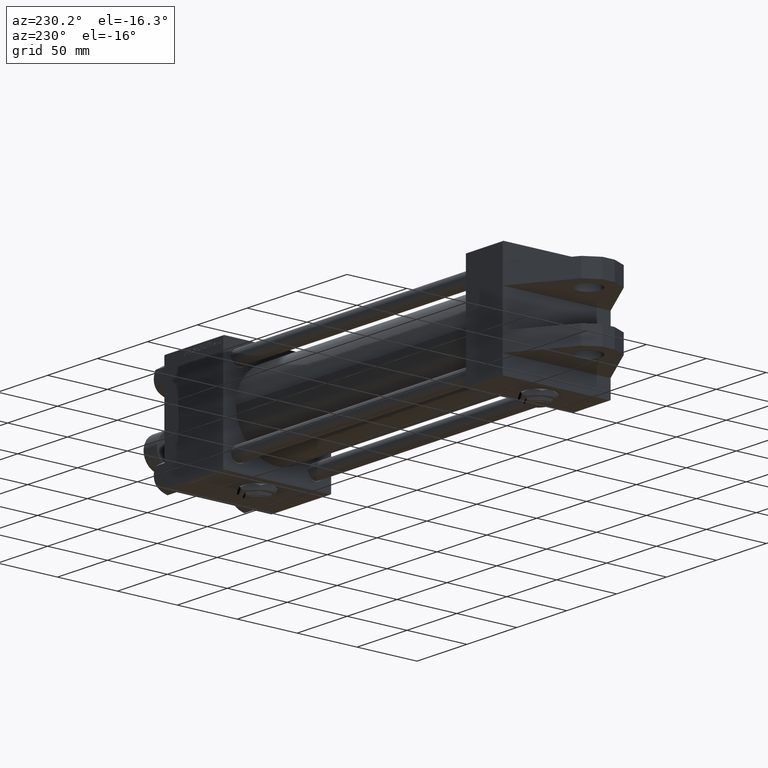
[diagram: clean part render]
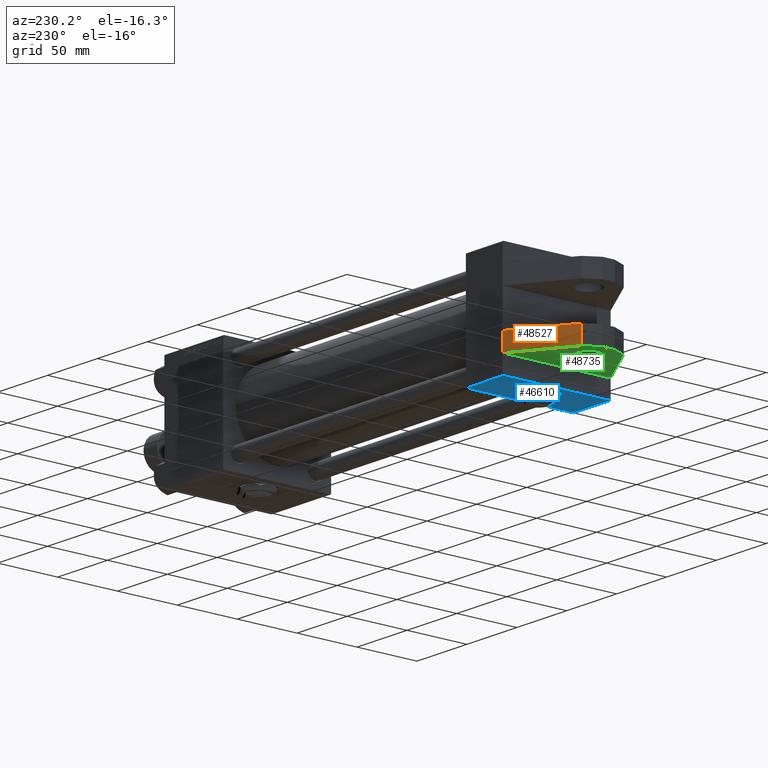
[diagram: same view with three faces highlighted in distinct colors, each labeled with its STEP entity id]
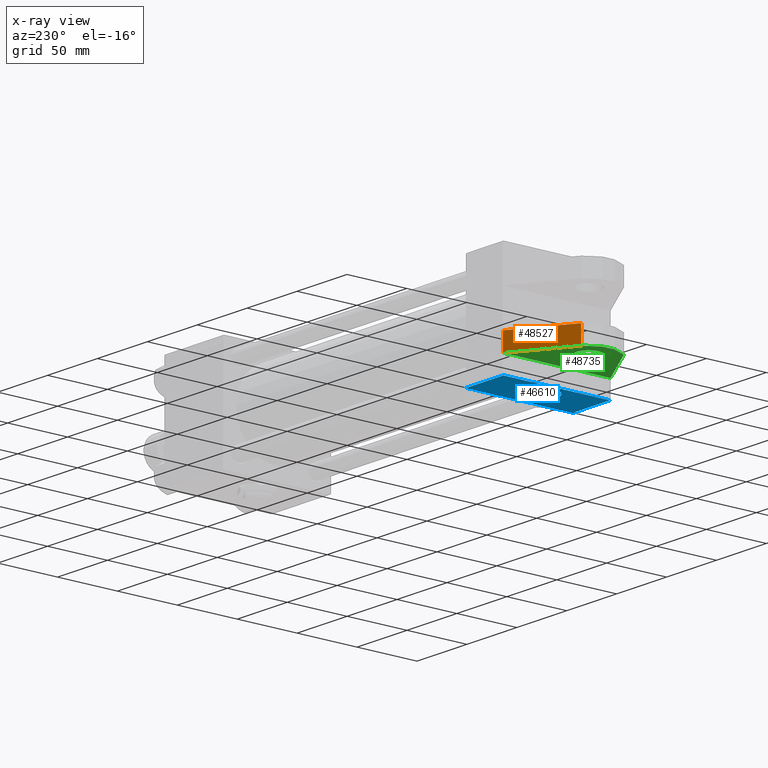
[diagram: x-ray of the same camera — body ghosted, the three highlighted faces saturated]
A machine part, auxiliary view with three faces highlighted in distinct colors.
The next image is the same camera in x-ray (body ghosted, the three faces saturated) — at least one of them is partly hidden behind the body in this view.
Their STEP definitions:

[orange] entity #48527 — the highlighted planar face has unit normal (0.5302, -0.8479, 0).
#273 = FACE_OUTER_BOUND ( 'NONE', #5173, .T. ) ;
#784 = EDGE_CURVE ( 'NONE', #35265, #30589, #49190, .T. ) ;
#1692 = EDGE_CURVE ( 'NONE', #17028, #30589, #33648, .T. ) ;
#2057 = DIRECTION ( 'NONE',  ( -0.000000000000000000, -1.000000000000000000, -0.000000000000000000 ) ) ;
#2579 = LINE ( 'NONE', #42262, #51378 ) ;
#5173 = EDGE_LOOP ( 'NONE', ( #15422, #50643, #42149, #13119 ) ) ;
#11262 = VECTOR ( 'NONE', #29154, 1000.000000000000114 ) ;
#12976 = PLANE ( 'NONE',  #47771 ) ;
#13119 = ORIENTED_EDGE ( 'NONE', *, *, #36225, .T. ) ;
#15422 = ORIENTED_EDGE ( 'NONE', *, *, #1692, .T. ) ;
#17028 = VERTEX_POINT ( 'NONE', #20891 ) ;
#17154 = LINE ( 'NONE', #33284, #21150 ) ;
#20891 = CARTESIAN_POINT ( 'NONE',  ( -44.91602078046192048, 15.00000000000000000, 16.91288539427591431 ) ) ;
#21150 = VECTOR ( 'NONE', #32765, 1000.000000000000114 ) ;
#29154 = DIRECTION ( 'NONE',  ( 0.8478744008358545248, 0.000000000000000000, 0.5301971335335947666 ) ) ;
#29821 = CARTESIAN_POINT ( 'NONE',  ( 0.000000000000000000, 15.00000000000000711, 45.00000000000000711 ) ) ;
#30589 = VERTEX_POINT ( 'NONE', #29821 ) ;
#30696 = VECTOR ( 'NONE', #37078, 1000.000000000000000 ) ;
#32765 = DIRECTION ( 'NONE',  ( 0.8478744008358545248, 0.000000000000000000, 0.5301971335335947666 ) ) ;
#33284 = CARTESIAN_POINT ( 'NONE',  ( -44.91602078046192048, 30.00000000000000000, 16.91288539427591431 ) ) ;
#33648 = LINE ( 'NONE', #45247, #11262 ) ;
#35265 = VERTEX_POINT ( 'NONE', #47805 ) ;
#35894 = VERTEX_POINT ( 'NONE', #41796 ) ;
#36225 = EDGE_CURVE ( 'NONE', #35894, #17028, #2579, .T. ) ;
#37078 = DIRECTION ( 'NONE',  ( -0.000000000000000000, -1.000000000000000000, -0.000000000000000000 ) ) ;
#37591 = CARTESIAN_POINT ( 'NONE',  ( 0.000000000000000000, 30.00000000000000000, 45.00000000000000000 ) ) ;
#39861 = EDGE_CURVE ( 'NONE', #35894, #35265, #17154, .T. ) ;
#40742 = DIRECTION ( 'NONE',  ( -0.8478744008358545248, 0.000000000000000000, -0.5301971335335948776 ) ) ;
#41796 = CARTESIAN_POINT ( 'NONE',  ( -44.91602078046192048, 30.00000000000000000, 16.91288539427591431 ) ) ;
#42149 = ORIENTED_EDGE ( 'NONE', *, *, #39861, .F. ) ;
#42262 = CARTESIAN_POINT ( 'NONE',  ( -44.91602078046192048, 30.00000000000000000, 16.91288539427591431 ) ) ;
#44176 = DIRECTION ( 'NONE',  ( 0.5301971335335949886, 0.000000000000000000, -0.8478744008358546358 ) ) ;
#45213 = CARTESIAN_POINT ( 'NONE',  ( -44.91602078046192048, 30.00000000000000000, 16.91288539427591431 ) ) ;
#45247 = CARTESIAN_POINT ( 'NONE',  ( -44.91602078046192048, 15.00000000000000000, 16.91288539427591431 ) ) ;
#47771 = AXIS2_PLACEMENT_3D ( 'NONE', #45213, #44176, #40742 ) ;
#47805 = CARTESIAN_POINT ( 'NONE',  ( 0.000000000000000000, 30.00000000000000355, 45.00000000000001421 ) ) ;
#48527 = ADVANCED_FACE ( 'NONE', ( #273 ), #12976, .F. ) ;
#49190 = LINE ( 'NONE', #37591, #30696 ) ;
#50643 = ORIENTED_EDGE ( 'NONE', *, *, #784, .F. ) ;
#51378 = VECTOR ( 'NONE', #2057, 1000.000000000000000 ) ;

[blue] entity #46610 — the highlighted planar face has unit normal (0, 0, -1).
#688 = EDGE_CURVE ( 'NONE', #52302, #42463, #4535, .T. ) ;
#1186 = LINE ( 'NONE', #33218, #2992 ) ;
#2665 = ORIENTED_EDGE ( 'NONE', *, *, #31198, .F. ) ;
#2992 = VECTOR ( 'NONE', #49297, 1000.000000000000000 ) ;
#3207 = CIRCLE ( 'NONE', #44614, 15.00000000000000178 ) ;
#4104 = DIRECTION ( 'NONE',  ( 0.000000000000000000, 0.000000000000000000, 1.000000000000000000 ) ) ;
#4355 = CARTESIAN_POINT ( 'NONE',  ( 18.50000000000000000, 44.99999999999998579, 0.000000000000000000 ) ) ;
#4535 = LINE ( 'NONE', #12743, #21394 ) ;
#4544 = ORIENTED_EDGE ( 'NONE', *, *, #27800, .F. ) ;
#5676 = PLANE ( 'NONE',  #13120 ) ;
#6478 = EDGE_CURVE ( 'NONE', #52302, #27157, #50247, .T. ) ;
#7332 = CARTESIAN_POINT ( 'NONE',  ( 18.50000000000000355, 44.99999999999998579, -15.00000000000000178 ) ) ;
#11962 = EDGE_LOOP ( 'NONE', ( #2665, #4544 ) ) ;
#12186 = DIRECTION ( 'NONE',  ( 0.000000000000000000, 1.000000000000000000, 0.000000000000000000 ) ) ;
#12743 = CARTESIAN_POINT ( 'NONE',  ( 0.000000000000000000, 44.99999999999998579, 45.00000000000001421 ) ) ;
#13120 = AXIS2_PLACEMENT_3D ( 'NONE', #34520, #30550, #25542 ) ;
#13780 = CARTESIAN_POINT ( 'NONE',  ( 0.000000000000000000, 44.99999999999998579, 44.50000000000001421 ) ) ;
#19544 = EDGE_CURVE ( 'NONE', #22732, #42463, #50371, .T. ) ;
#19909 = DIRECTION ( 'NONE',  ( 0.000000000000000000, 0.000000000000000000, -1.000000000000000000 ) ) ;
#21300 = CARTESIAN_POINT ( 'NONE',  ( 37.00000000000000000, 44.99999999999998579, -44.49999999999995737 ) ) ;
#21394 = VECTOR ( 'NONE', #19909, 1000.000000000000000 ) ;
#22056 = CARTESIAN_POINT ( 'NONE',  ( 37.00000000000000000, 44.99999999999998579, 44.50000000000001421 ) ) ;
#22732 = VERTEX_POINT ( 'NONE', #21300 ) ;
#22989 = DIRECTION ( 'NONE',  ( 0.000000000000000000, 1.000000000000000000, 0.000000000000000000 ) ) ;
#24939 = VERTEX_POINT ( 'NONE', #49412 ) ;
#25542 = DIRECTION ( 'NONE',  ( 0.000000000000000000, -0.000000000000000000, 1.000000000000000000 ) ) ;
#26329 = FACE_BOUND ( 'NONE', #11962, .T. ) ;
#27157 = VERTEX_POINT ( 'NONE', #22056 ) ;
#27649 = AXIS2_PLACEMENT_3D ( 'NONE', #4355, #22989, #4104 ) ;
#27800 = EDGE_CURVE ( 'NONE', #33577, #24939, #36929, .T. ) ;
#27839 = ORIENTED_EDGE ( 'NONE', *, *, #19544, .T. ) ;
#28321 = DIRECTION ( 'NONE',  ( 0.000000000000000000, 0.000000000000000000, 1.000000000000000000 ) ) ;
#29019 = VECTOR ( 'NONE', #46420, 1000.000000000000000 ) ;
#30550 = DIRECTION ( 'NONE',  ( -0.000000000000000000, 1.000000000000000000, 0.000000000000000000 ) ) ;
#31198 = EDGE_CURVE ( 'NONE', #24939, #33577, #3207, .T. ) ;
#33218 = CARTESIAN_POINT ( 'NONE',  ( 37.00000000000000000, 44.99999999999998579, 45.00000000000001421 ) ) ;
#33435 = EDGE_LOOP ( 'NONE', ( #41379, #27839, #38841, #52108 ) ) ;
#33577 = VERTEX_POINT ( 'NONE', #7332 ) ;
#34520 = CARTESIAN_POINT ( 'NONE',  ( 37.00000000000000000, 44.99999999999998579, 45.00000000000001421 ) ) ;
#34944 = CARTESIAN_POINT ( 'NONE',  ( 0.000000000000000000, 44.99999999999998579, -44.49999999999995737 ) ) ;
#36929 = CIRCLE ( 'NONE', #27649, 15.00000000000000178 ) ;
#38133 = DIRECTION ( 'NONE',  ( 1.000000000000000000, 0.000000000000000000, 0.000000000000000000 ) ) ;
#38841 = ORIENTED_EDGE ( 'NONE', *, *, #688, .F. ) ;
#41379 = ORIENTED_EDGE ( 'NONE', *, *, #47307, .T. ) ;
#41906 = FACE_OUTER_BOUND ( 'NONE', #33435, .T. ) ;
#42463 = VERTEX_POINT ( 'NONE', #34944 ) ;
#44356 = VECTOR ( 'NONE', #38133, 1000.000000000000000 ) ;
#44614 = AXIS2_PLACEMENT_3D ( 'NONE', #51560, #12186, #28321 ) ;
#46420 = DIRECTION ( 'NONE',  ( -1.000000000000000000, 0.000000000000000000, 0.000000000000000000 ) ) ;
#46610 = ADVANCED_FACE ( 'NONE', ( #26329, #41906 ), #5676, .T. ) ;
#47307 = EDGE_CURVE ( 'NONE', #27157, #22732, #1186, .T. ) ;
#49297 = DIRECTION ( 'NONE',  ( 0.000000000000000000, 0.000000000000000000, -1.000000000000000000 ) ) ;
#49412 = CARTESIAN_POINT ( 'NONE',  ( 18.50000000000000000, 44.99999999999998579, 15.00000000000000178 ) ) ;
#49727 = CARTESIAN_POINT ( 'NONE',  ( 37.00000000000000000, 44.99999999999998579, 44.50000000000001421 ) ) ;
#49846 = CARTESIAN_POINT ( 'NONE',  ( 37.00000000000000000, 44.99999999999998579, -44.49999999999998579 ) ) ;
#50247 = LINE ( 'NONE', #49727, #44356 ) ;
#50371 = LINE ( 'NONE', #49846, #29019 ) ;
#51560 = CARTESIAN_POINT ( 'NONE',  ( 18.50000000000000000, 44.99999999999998579, 0.000000000000000000 ) ) ;
#52108 = ORIENTED_EDGE ( 'NONE', *, *, #6478, .T. ) ;
#52302 = VERTEX_POINT ( 'NONE', #13780 ) ;

[green] entity #48735 — the highlighted planar face has unit normal (0, 0, -1).
#5094 = CARTESIAN_POINT ( 'NONE',  ( -32.00000000000000000, 30.00000000000000000, -10.00000000000000000 ) ) ;
#5608 = DIRECTION ( 'NONE',  ( 0.000000000000000000, 0.000000000000000000, -1.000000000000000000 ) ) ;
#8028 = CIRCLE ( 'NONE', #38476, 10.00000000000000000 ) ;
#8271 = CARTESIAN_POINT ( 'NONE',  ( -46.14251089227400371, 30.00000000000000000, -17.56142592832800631 ) ) ;
#8746 = EDGE_LOOP ( 'NONE', ( #29286, #26352, #43060, #16869, #19780, #50095 ) ) ;
#9698 = EDGE_CURVE ( 'NONE', #48168, #36367, #43650, .T. ) ;
#11369 = VECTOR ( 'NONE', #25826, 999.9999999999998863 ) ;
#11905 = CARTESIAN_POINT ( 'NONE',  ( -52.00000000000000711, 30.00000000000000000, 5.000000000000000000 ) ) ;
#11913 = CARTESIAN_POINT ( 'NONE',  ( -52.00000000000000711, 30.00000000000000000, -5.000000000000000000 ) ) ;
#13643 = EDGE_CURVE ( 'NONE', #35265, #37915, #26262, .T. ) ;
#15077 = CARTESIAN_POINT ( 'NONE',  ( 0.000000000000000000, 30.00000000000000000, 0.000000000000000000 ) ) ;
#15600 = ORIENTED_EDGE ( 'NONE', *, *, #9698, .F. ) ;
#16121 = EDGE_CURVE ( 'NONE', #28159, #29395, #40701, .T. ) ;
#16803 = CARTESIAN_POINT ( 'NONE',  ( -32.00000000000000000, 30.00000000000000000, 0.000000000000000000 ) ) ;
#16869 = ORIENTED_EDGE ( 'NONE', *, *, #18582, .T. ) ;
#17062 = DIRECTION ( 'NONE',  ( 0.000000000000000000, 1.000000000000000000, 0.000000000000000000 ) ) ;
#17154 = LINE ( 'NONE', #33284, #21150 ) ;
#17970 = VECTOR ( 'NONE', #24333, 1000.000000000000227 ) ;
#18582 = EDGE_CURVE ( 'NONE', #37915, #28159, #42456, .T. ) ;
#19159 = VECTOR ( 'NONE', #32408, 999.9999999999998863 ) ;
#19207 = VECTOR ( 'NONE', #5608, 1000.000000000000000 ) ;
#19780 = ORIENTED_EDGE ( 'NONE', *, *, #16121, .T. ) ;
#20428 = VERTEX_POINT ( 'NONE', #11905 ) ;
#21150 = VECTOR ( 'NONE', #32765, 1000.000000000000114 ) ;
#22827 = DIRECTION ( 'NONE',  ( 0.000000000000000000, 0.000000000000000000, 1.000000000000000000 ) ) ;
#23012 = FACE_BOUND ( 'NONE', #52042, .T. ) ;
#23721 = EDGE_CURVE ( 'NONE', #36367, #48168, #8028, .T. ) ;
#24333 = DIRECTION ( 'NONE',  ( -0.4226182617406930020, -0.000000000000000000, 0.9063077870366529343 ) ) ;
#25115 = CARTESIAN_POINT ( 'NONE',  ( -52.00000000000000711, 30.00000000000000000, -5.000000000000000000 ) ) ;
#25826 = DIRECTION ( 'NONE',  ( -0.8595155407125480984, -0.000000000000000000, 0.5111096117992853793 ) ) ;
#26262 = LINE ( 'NONE', #38936, #19207 ) ;
#26352 = ORIENTED_EDGE ( 'NONE', *, *, #39861, .T. ) ;
#27736 = EDGE_CURVE ( 'NONE', #20428, #35894, #30924, .T. ) ;
#28159 = VERTEX_POINT ( 'NONE', #8271 ) ;
#29100 = LINE ( 'NONE', #11913, #32895 ) ;
#29286 = ORIENTED_EDGE ( 'NONE', *, *, #27736, .T. ) ;
#29395 = VERTEX_POINT ( 'NONE', #37095 ) ;
#30924 = LINE ( 'NONE', #35144, #19159 ) ;
#31209 = DIRECTION ( 'NONE',  ( 0.000000000000000000, -0.000000000000000000, 1.000000000000000000 ) ) ;
#32408 = DIRECTION ( 'NONE',  ( 0.5111096117992851573, 0.000000000000000000, 0.8595155407125482094 ) ) ;
#32765 = DIRECTION ( 'NONE',  ( 0.8478744008358545248, 0.000000000000000000, 0.5301971335335947666 ) ) ;
#32807 = DIRECTION ( 'NONE',  ( 0.000000000000000000, 0.000000000000000000, 1.000000000000000000 ) ) ;
#32895 = VECTOR ( 'NONE', #32807, 1000.000000000000000 ) ;
#33284 = CARTESIAN_POINT ( 'NONE',  ( -44.91602078046192048, 30.00000000000000000, 16.91288539427591431 ) ) ;
#34978 = CARTESIAN_POINT ( 'NONE',  ( -32.00000000000000000, 30.00000000000000000, 0.000000000000000000 ) ) ;
#35144 = CARTESIAN_POINT ( 'NONE',  ( -52.00000000000000711, 30.00000000000000000, 5.000000000000000000 ) ) ;
#35265 = VERTEX_POINT ( 'NONE', #47805 ) ;
#35684 = PLANE ( 'NONE',  #41909 ) ;
#35894 = VERTEX_POINT ( 'NONE', #41796 ) ;
#36367 = VERTEX_POINT ( 'NONE', #38560 ) ;
#37095 = CARTESIAN_POINT ( 'NONE',  ( -52.00000000000000711, 30.00000000000000000, -5.000000000000000000 ) ) ;
#37574 = EDGE_CURVE ( 'NONE', #29395, #20428, #29100, .T. ) ;
#37915 = VERTEX_POINT ( 'NONE', #43328 ) ;
#38476 = AXIS2_PLACEMENT_3D ( 'NONE', #16803, #17062, #41624 ) ;
#38560 = CARTESIAN_POINT ( 'NONE',  ( -32.00000000000000000, 30.00000000000000000, 10.00000000000000000 ) ) ;
#38936 = CARTESIAN_POINT ( 'NONE',  ( 0.000000000000000000, 30.00000000000000000, 45.00000000000000000 ) ) ;
#39861 = EDGE_CURVE ( 'NONE', #35894, #35265, #17154, .T. ) ;
#40701 = LINE ( 'NONE', #25115, #17970 ) ;
#41624 = DIRECTION ( 'NONE',  ( 0.000000000000000000, 0.000000000000000000, 1.000000000000000000 ) ) ;
#41796 = CARTESIAN_POINT ( 'NONE',  ( -44.91602078046192048, 30.00000000000000000, 16.91288539427591431 ) ) ;
#41909 = AXIS2_PLACEMENT_3D ( 'NONE', #15077, #47046, #31209 ) ;
#42456 = LINE ( 'NONE', #49577, #11369 ) ;
#43060 = ORIENTED_EDGE ( 'NONE', *, *, #13643, .T. ) ;
#43328 = CARTESIAN_POINT ( 'NONE',  ( 0.000000000000000000, 30.00000000000000000, -45.00000000000000000 ) ) ;
#43650 = CIRCLE ( 'NONE', #46995, 10.00000000000000000 ) ;
#46995 = AXIS2_PLACEMENT_3D ( 'NONE', #34978, #50803, #22827 ) ;
#47046 = DIRECTION ( 'NONE',  ( -0.000000000000000000, 1.000000000000000000, 0.000000000000000000 ) ) ;
#47547 = FACE_OUTER_BOUND ( 'NONE', #8746, .T. ) ;
#47805 = CARTESIAN_POINT ( 'NONE',  ( 0.000000000000000000, 30.00000000000000355, 45.00000000000001421 ) ) ;
#48168 = VERTEX_POINT ( 'NONE', #5094 ) ;
#48735 = ADVANCED_FACE ( 'NONE', ( #47547, #23012 ), #35684, .T. ) ;
#49577 = CARTESIAN_POINT ( 'NONE',  ( -46.14251089227400371, 30.00000000000000000, -17.56142592832800631 ) ) ;
#50095 = ORIENTED_EDGE ( 'NONE', *, *, #37574, .T. ) ;
#50803 = DIRECTION ( 'NONE',  ( 0.000000000000000000, 1.000000000000000000, 0.000000000000000000 ) ) ;
#50930 = ORIENTED_EDGE ( 'NONE', *, *, #23721, .F. ) ;
#52042 = EDGE_LOOP ( 'NONE', ( #15600, #50930 ) ) ;